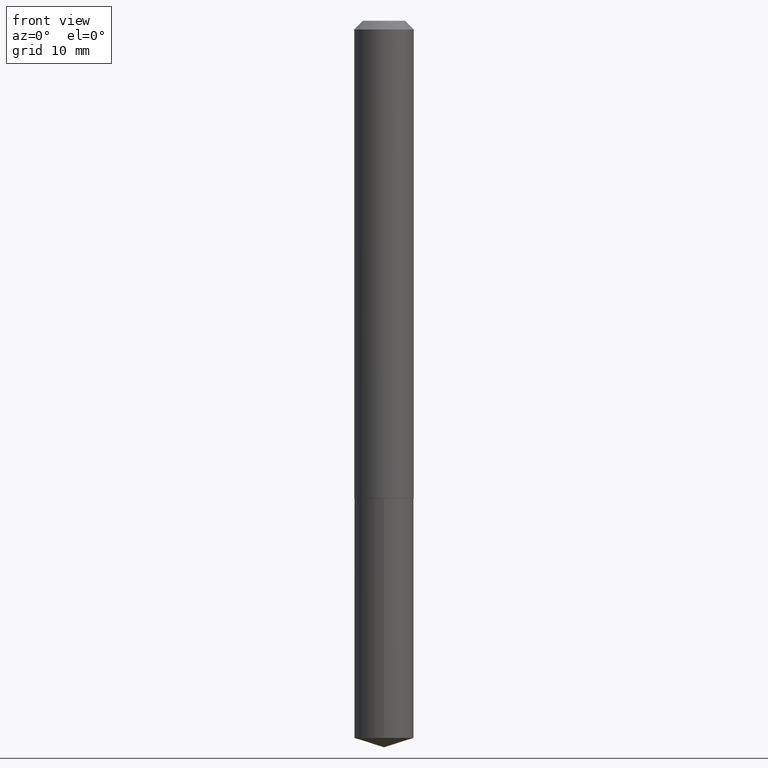
[diagram: clean part render]
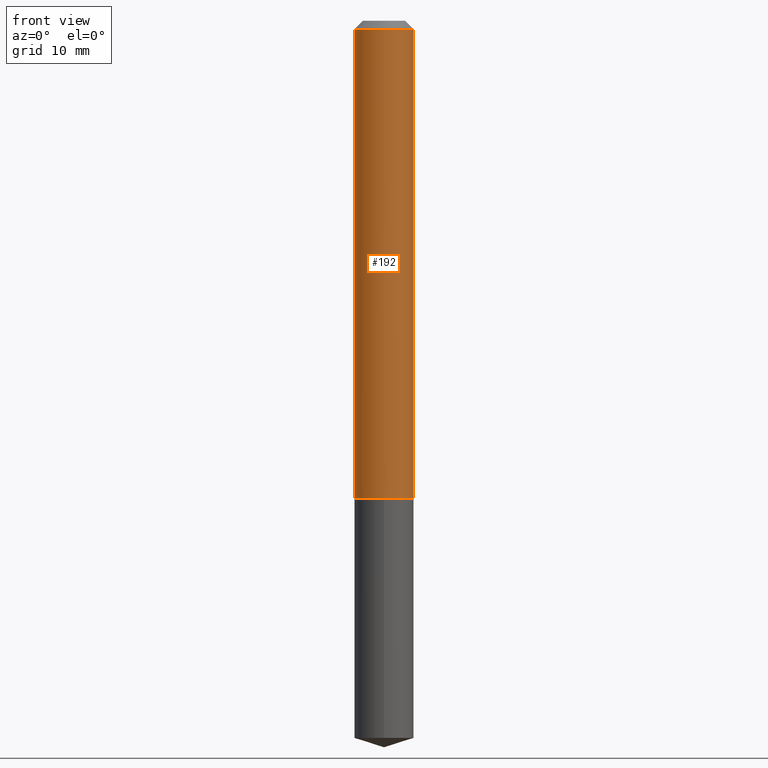
[diagram: same view with one face highlighted and labeled with its STEP entity id]
A machine part, front view. The second image highlights one B-rep face of the part: STEP entity #192.
In plain terms, the highlighted cylindrical surface (edge-blend (fillet) strip) has radius 2.7 mm, axis along (-0, 0, 1).
Its self-contained STEP definition (entity closure, byte-faithful):
#17 = CARTESIAN_POINT ( 'NONE',  ( 0.1063000000000002415, -6.706088207516028077E-15, -1.708099999999999952 ) ) ;
#22 = EDGE_LOOP ( 'NONE', ( #333, #57, #227, #325 ) ) ;
#35 = EDGE_CURVE ( 'NONE', #212, #278, #185, .T. ) ;
#57 = ORIENTED_EDGE ( 'NONE', *, *, #150, .T. ) ;
#74 = CARTESIAN_POINT ( 'NONE',  ( 4.177105267844832123E-29, -5.963799274877977150E-15, -1.708099999999999952 ) ) ;
#100 = AXIS2_PLACEMENT_3D ( 'NONE', #190, #275, #130 ) ;
#112 = VECTOR ( 'NONE', #271, 39.37007874015748143 ) ;
#122 = AXIS2_PLACEMENT_3D ( 'NONE', #299, #241, #156 ) ;
#130 = DIRECTION ( 'NONE',  ( 1.000000000000000000, -6.982962677686267499E-15, 0.000000000000000000 ) ) ;
#132 = CARTESIAN_POINT ( 'NONE',  ( -0.1063000000000000056, -2.281147105245424221E-15, -0.03125000000000019429 ) ) ;
#150 = EDGE_CURVE ( 'NONE', #316, #280, #290, .T. ) ;
#156 = DIRECTION ( 'NONE',  ( 1.000000000000000000, -6.982962677686266711E-15, 4.876176775795935793E-29 ) ) ;
#157 = AXIS2_PLACEMENT_3D ( 'NONE', #74, #339, #285 ) ;
#166 = CARTESIAN_POINT ( 'NONE',  ( 0.1063000000000000056, -8.513977244768991407E-16, -0.03125000000000019429 ) ) ;
#185 = CIRCLE ( 'NONE', #100, 0.1063000000000000056 ) ;
#190 = CARTESIAN_POINT ( 'NONE',  ( 7.642090019328599159E-31, -1.091087918388489774E-16, -0.03125000000000019429 ) ) ;
#192 = ADVANCED_FACE ( 'NONE', ( #296 ), #248, .T. ) ;
#212 = VERTEX_POINT ( 'NONE', #132 ) ;
#227 = ORIENTED_EDGE ( 'NONE', *, *, #390, .T. ) ;
#241 = DIRECTION ( 'NONE',  ( -2.445468806185136597E-29, 3.491481338843145583E-15, 1.000000000000000000 ) ) ;
#244 = CARTESIAN_POINT ( 'NONE',  ( -0.1063000000000001166, 7.553069281129873262E-16, -5.228828000940970663E-30 ) ) ;
#248 = CYLINDRICAL_SURFACE ( 'NONE', #122, 0.1063000000000001166 ) ;
#256 = EDGE_CURVE ( 'NONE', #316, #212, #356, .T. ) ;
#264 = VECTOR ( 'NONE', #352, 39.37007874015748143 ) ;
#271 = DIRECTION ( 'NONE',  ( -2.445468806185136877E-29, 3.491481338843145188E-15, 1.000000000000000000 ) ) ;
#275 = DIRECTION ( 'NONE',  ( -2.445468806185136597E-29, 3.491481338843145583E-15, 1.000000000000000000 ) ) ;
#278 = VERTEX_POINT ( 'NONE', #166 ) ;
#280 = VERTEX_POINT ( 'NONE', #17 ) ;
#285 = DIRECTION ( 'NONE',  ( 1.000000000000000000, -6.982962677686262766E-15, 0.000000000000000000 ) ) ;
#286 = CARTESIAN_POINT ( 'NONE',  ( -0.1063000000000002415, -5.208492346764989429E-15, -1.708099999999999952 ) ) ;
#290 = CIRCLE ( 'NONE', #157, 0.1063000000000002415 ) ;
#296 = FACE_OUTER_BOUND ( 'NONE', #22, .T. ) ;
#299 = CARTESIAN_POINT ( 'NONE',  ( 0.000000000000000000, 0.000000000000000000, 0.000000000000000000 ) ) ;
#316 = VERTEX_POINT ( 'NONE', #286 ) ;
#321 = LINE ( 'NONE', #385, #112 ) ;
#325 = ORIENTED_EDGE ( 'NONE', *, *, #35, .F. ) ;
#333 = ORIENTED_EDGE ( 'NONE', *, *, #256, .F. ) ;
#339 = DIRECTION ( 'NONE',  ( -2.445468806185136597E-29, 3.491481338843145583E-15, 1.000000000000000000 ) ) ;
#352 = DIRECTION ( 'NONE',  ( -2.445468806185136877E-29, 3.491481338843145188E-15, 1.000000000000000000 ) ) ;
#356 = LINE ( 'NONE', #244, #264 ) ;
#385 = CARTESIAN_POINT ( 'NONE',  ( 0.1063000000000001166, -7.422889326380509276E-16, 5.183375912671085656E-30 ) ) ;
#390 = EDGE_CURVE ( 'NONE', #280, #278, #321, .T. ) ;